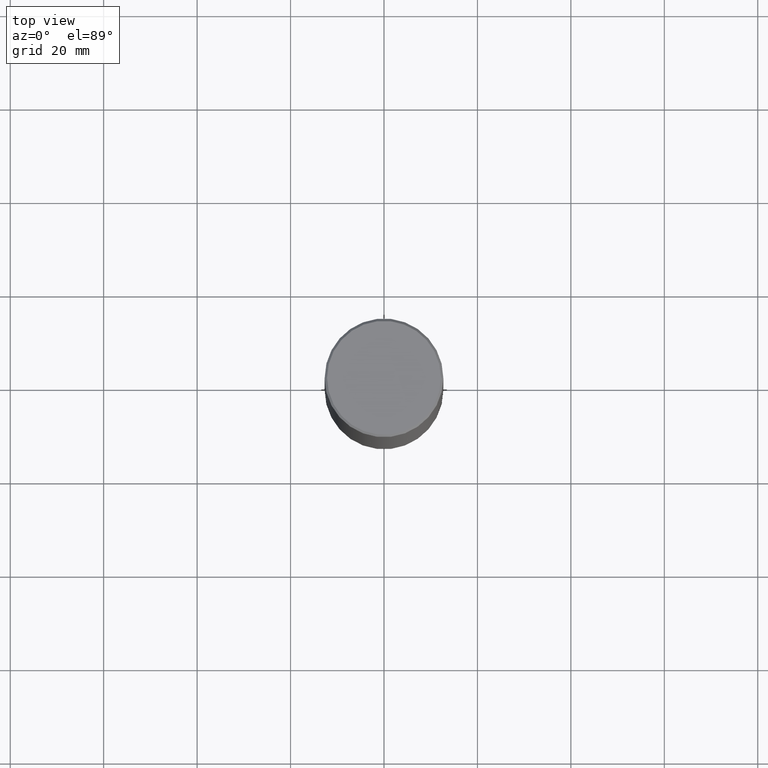
[diagram: clean part render]
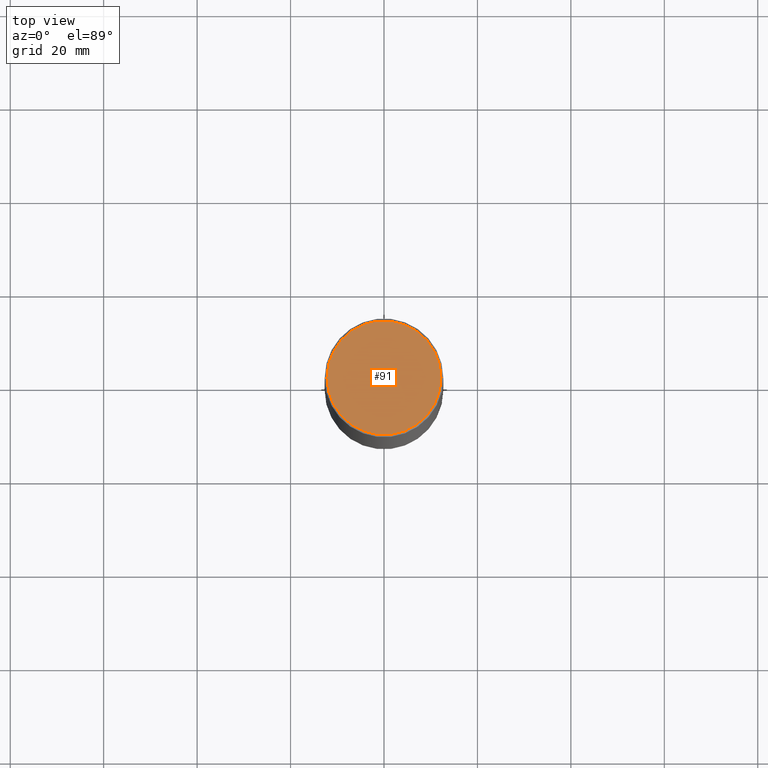
[diagram: same view with one face highlighted and labeled with its STEP entity id]
A machine part, top view. The second image highlights one B-rep face of the part: STEP entity #91.
In plain terms, the highlighted planar face has unit normal (0, -0, -1).
Its self-contained STEP definition (entity closure, byte-faithful):
#29 = EDGE_CURVE ( 'NONE', #96, #431, #210, .T. ) ;
#67 = DIRECTION ( 'NONE',  ( -2.445468806185136597E-29, 3.491481338843145583E-15, 1.000000000000000000 ) ) ;
#82 = AXIS2_PLACEMENT_3D ( 'NONE', #98, #470, #141 ) ;
#83 = CARTESIAN_POINT ( 'NONE',  ( -0.4799999999999988165, 3.386736898677831703E-15, 1.280553747027767124E-17 ) ) ;
#91 = ADVANCED_FACE ( 'NONE', ( #488 ), #371, .F. ) ;
#96 = VERTEX_POINT ( 'NONE', #83 ) ;
#98 = CARTESIAN_POINT ( 'NONE',  ( -3.131554243005659264E-46, 4.471029511141341874E-32, 1.280553747030123384E-17 ) ) ;
#124 = DIRECTION ( 'NONE',  ( -1.000000000000000000, 6.982962677686265922E-15, -4.876176775795935793E-29 ) ) ;
#125 = AXIS2_PLACEMENT_3D ( 'NONE', #155, #455, #124 ) ;
#141 = DIRECTION ( 'NONE',  ( 1.000000000000000000, -6.982962677686267499E-15, 4.876036955247141175E-29 ) ) ;
#150 = ORIENTED_EDGE ( 'NONE', *, *, #29, .T. ) ;
#155 = CARTESIAN_POINT ( 'NONE',  ( 3.351822085289399659E-15, 0.4799999999999988165, -1.669508273909555106E-15 ) ) ;
#165 = EDGE_CURVE ( 'NONE', #431, #96, #200, .T. ) ;
#187 = CARTESIAN_POINT ( 'NONE',  ( -3.131554243005659264E-46, 4.471029511141341874E-32, 1.280553747030123384E-17 ) ) ;
#200 = CIRCLE ( 'NONE', #82, 0.4799999999999988165 ) ;
#210 = CIRCLE ( 'NONE', #346, 0.4799999999999988165 ) ;
#254 = CARTESIAN_POINT ( 'NONE',  ( 0.4799999999999988165, -3.396558832296475394E-15, 1.280553747032483033E-17 ) ) ;
#284 = DIRECTION ( 'NONE',  ( 1.000000000000000000, -6.982962677686267499E-15, 4.876036955247141175E-29 ) ) ;
#286 = ORIENTED_EDGE ( 'NONE', *, *, #165, .T. ) ;
#346 = AXIS2_PLACEMENT_3D ( 'NONE', #187, #67, #284 ) ;
#371 = PLANE ( 'NONE',  #125 ) ;
#372 = EDGE_LOOP ( 'NONE', ( #150, #286 ) ) ;
#431 = VERTEX_POINT ( 'NONE', #254 ) ;
#455 = DIRECTION ( 'NONE',  ( 2.438088387897960049E-29, -3.491481338843145188E-15, -1.000000000000000000 ) ) ;
#470 = DIRECTION ( 'NONE',  ( -2.445468806185136597E-29, 3.491481338843145583E-15, 1.000000000000000000 ) ) ;
#488 = FACE_OUTER_BOUND ( 'NONE', #372, .T. ) ;